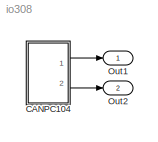
MODEL io308
KIND model
CONFIG PreLoadFcn = setxpcenv('CAN','PC104');updatexpcenv(1);
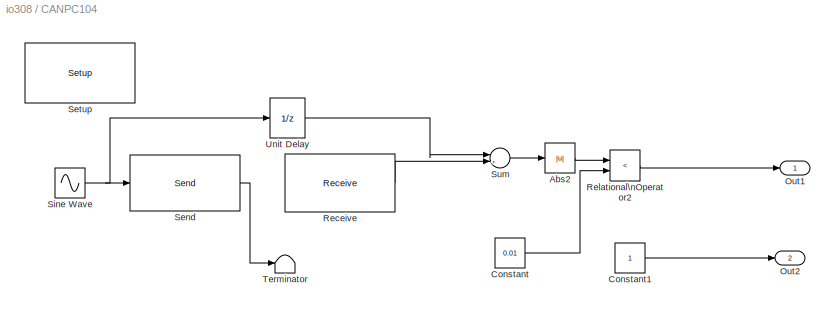
BLOCK [SubSystem] CANPC104
  MinAlgLoopOccurrences = off
  Ports = [0, 2]
  PropExecContextAcrossSSBoundary = on
  RTWSystemCode = Auto
  TreatAsAtomicUnit = off
BLOCK [Abs] CANPC104/Abs2
BLOCK [Constant] CANPC104/Constant
  Value = 0.01
BLOCK [Constant] CANPC104/Constant1
BLOCK [Outport] CANPC104/Out1
  BusOutputAsStruct = off
  IconDisplay = Port number
BLOCK [Outport] CANPC104/Out2
  BusOutputAsStruct = off
  IconDisplay = Port number
  Port = 2
BLOCK [Reference] CANPC104/Receive   REF=xpclib/CAN/Softing/CAN-AC2-104\nSJA 1000/Receive 
  Ports = [0, 1]
  SourceBlock = xpclib/CAN/Softing/CAN-AC2-104\nSJA 1000/Receive
  SourceType = canac2104receive
  board = 1
  canPort = CAN 2
  ididx = [0]
  ids = [50]
  inten = off
  output = Data
  range = Standard (11-bit)
  ts = 0.01
BLOCK [RelationalOperator] CANPC104/Relational\nOperator2
  InputSameDT = off
  Operator = <
BLOCK [Reference] CANPC104/Send   REF=xpclib/CAN/Softing/CAN-AC2-104\nSJA 1000/Send 
  Ports = [1, 1]
  SourceBlock = xpclib/CAN/Softing/CAN-AC2-104\nSJA 1000/Send
  SourceType = canac2104send
  board = 1
  canPort = CAN 1
  ididx = [0]
  ids = [50]
  output = on
  range = Standard (11-bit)
  sizes = [8]
  ts = 0.01
BLOCK [Reference] CANPC104/Setup   REF=xpclib/CAN/Softing/CAN-AC2-104\nSJA 1000/Setup 
  Ports = []
  SourceBlock = xpclib/CAN/Softing/CAN-AC2-104\nSJA 1000/Setup
  SourceType = canac2104setup
  board = 1
  can1Baudrate = 1 MBaud
  can1UserBR = [1,1,4,3]
  can2Baudrate = 1 MBaud
  can2UserBR = [1,1,4,3]
  init = []
  intNo = None
  ioBaseAddressL = 0x300
  memBaseAddressL = 0xd0000
  term = []
BLOCK [Sin] CANPC104/Sine Wave
  Frequency = 5
  Ports = [0, 1]
  SampleTime = 0.01
  SineType = Time based
BLOCK [Sum] CANPC104/Sum
  IconShape = round
  InputSameDT = off
  Inputs = |+-
  OutDataTypeMode = Inherit via internal rule
  Ports = [2, 1]
BLOCK [Terminator] CANPC104/Terminator
BLOCK [UnitDelay] CANPC104/Unit Delay
  SampleTime = -1
BLOCK [Outport] Out1
  BusOutputAsStruct = off
  IconDisplay = Port number
BLOCK [Outport] Out2
  BusOutputAsStruct = off
  IconDisplay = Port number
  Port = 2
LINE CANPC104/Abs2:1 -> CANPC104/Relational\nOperator2:1
LINE CANPC104/Constant1:1 -> CANPC104/Out2:1
LINE CANPC104/Constant:1 -> CANPC104/Relational\nOperator2:2
LINE CANPC104/Receive :1 -> CANPC104/Sum:2
LINE CANPC104/Relational\nOperator2:1 -> CANPC104/Out1:1
LINE CANPC104/Send :1 -> CANPC104/Terminator:1
NET CANPC104/Sine Wave:1 -> CANPC104/Send :1, CANPC104/Unit Delay:1
LINE CANPC104/Sum:1 -> CANPC104/Abs2:1
LINE CANPC104/Unit Delay:1 -> CANPC104/Sum:1
LINE CANPC104:1 -> Out1:1
LINE CANPC104:2 -> Out2:1
note: NET lines group one-source signal fan-out (src -> all destinations, sorted); 1:1 wires keep LINE
